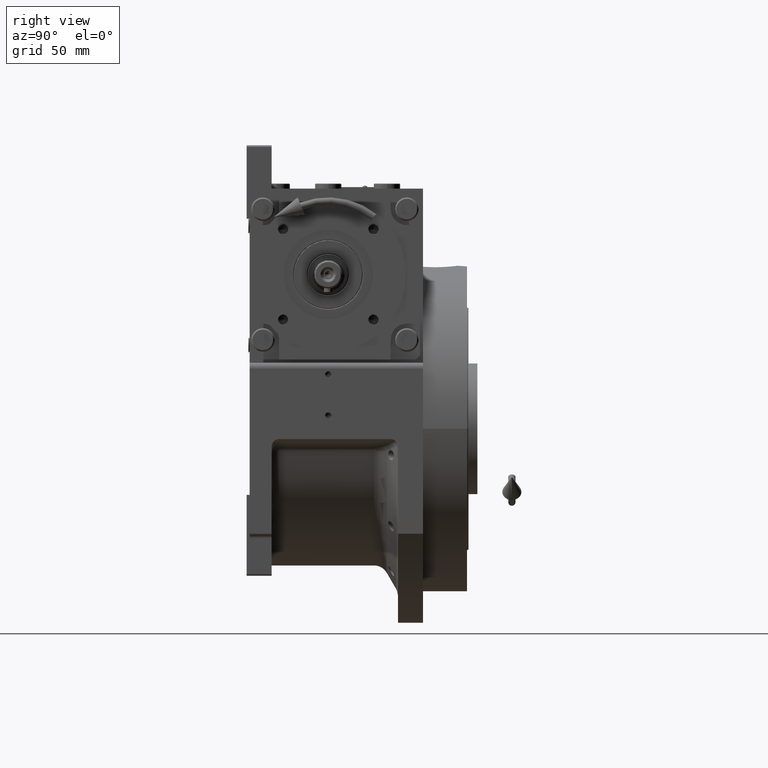
[diagram: clean part render]
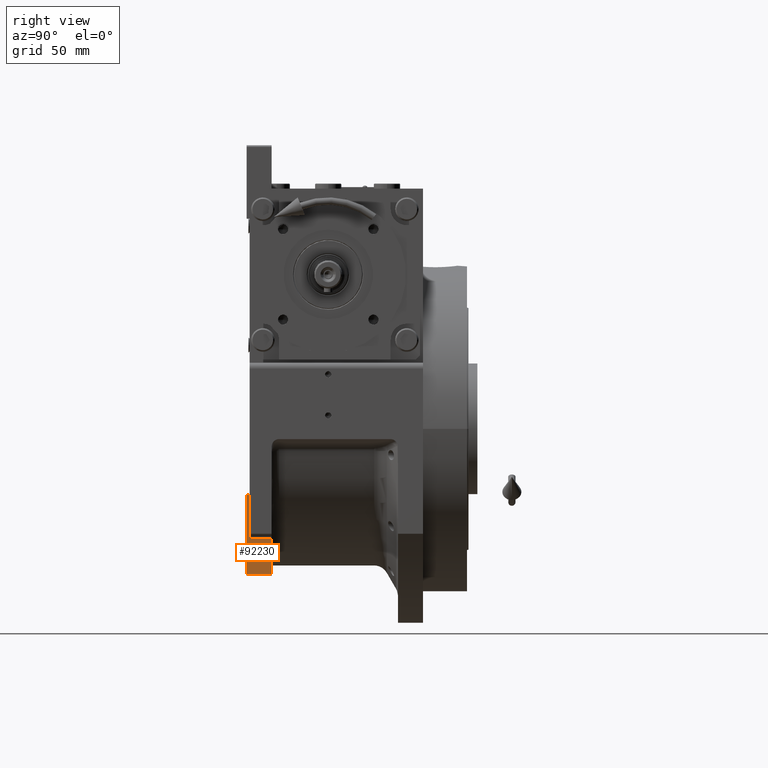
[diagram: same view with one face highlighted and labeled with its STEP entity id]
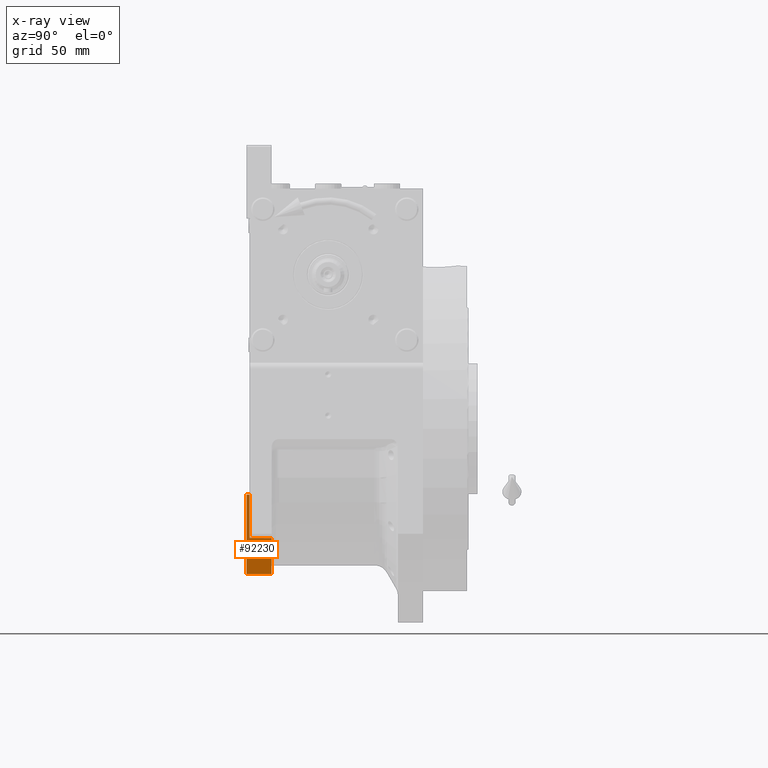
[diagram: x-ray of the same camera — body ghosted, the highlighted face saturated]
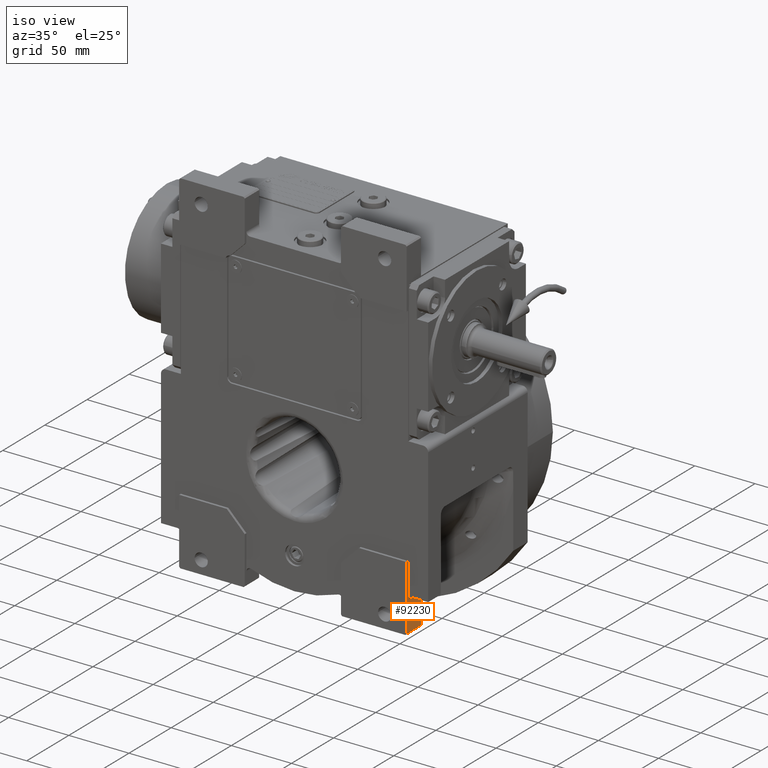
[diagram: same view with one face highlighted and labeled with its STEP entity id]
A machine part, right view. The second image highlights one B-rep face of the part: STEP entity #92230.
The next image is the same camera in x-ray: the body ghosted, the highlighted face saturated — about 0% of this face is hidden behind the body in this view.
A second angle (iso view) of the same face is appended — the face is thin or edge-on in the first view.
In plain terms, the highlighted planar face has unit normal (1, 0, 0).
Its self-contained STEP definition (entity closure, byte-faithful):
#3706 = FACE_OUTER_BOUND ( 'NONE', #53377, .T. ) ;
#5830 = CARTESIAN_POINT ( 'NONE',  ( 94.50000000000000000, -55.50000000000000000, -99.00000000000000000 ) ) ;
#7046 = CARTESIAN_POINT ( 'NONE',  ( 94.50000000000000000, -38.50000000000000000, -74.43528539874399996 ) ) ;
#9482 = ORIENTED_EDGE ( 'NONE', *, *, #99238, .T. ) ;
#9509 = VERTEX_POINT ( 'NONE', #7046 ) ;
#10116 = ORIENTED_EDGE ( 'NONE', *, *, #89134, .F. ) ;
#10331 = ORIENTED_EDGE ( 'NONE', *, *, #17990, .F. ) ;
#10395 = CARTESIAN_POINT ( 'NONE',  ( 94.50000000000000000, -53.50000000000000000, -74.43528539874399996 ) ) ;
#13529 = CARTESIAN_POINT ( 'NONE',  ( 94.50000000000000000, -53.50000000000000000, -74.43528539874399996 ) ) ;
#15947 = DIRECTION ( 'NONE',  ( 0.000000000000000000, 1.000000000000000000, 0.000000000000000000 ) ) ;
#17990 = EDGE_CURVE ( 'NONE', #40565, #9509, #20738, .T. ) ;
#20738 = LINE ( 'NONE', #13529, #88708 ) ;
#24163 = CARTESIAN_POINT ( 'NONE',  ( 94.50000000000000000, -55.50000000000000000, -45.00000000000000000 ) ) ;
#24165 = CARTESIAN_POINT ( 'NONE',  ( 94.50000000000000000, -55.50000000000000000, -99.00000000000000000 ) ) ;
#24854 = VECTOR ( 'NONE', #87416, 1000.000000000000000 ) ;
#30190 = VERTEX_POINT ( 'NONE', #43901 ) ;
#32440 = VERTEX_POINT ( 'NONE', #24163 ) ;
#40565 = VERTEX_POINT ( 'NONE', #10395 ) ;
#42392 = VECTOR ( 'NONE', #77359, 1000.000000000000000 ) ;
#43807 = PLANE ( 'NONE',  #87318 ) ;
#43901 = CARTESIAN_POINT ( 'NONE',  ( 94.50000000000000000, -53.50000000000000000, -45.00000000000000000 ) ) ;
#46458 = EDGE_CURVE ( 'NONE', #40565, #30190, #46650, .T. ) ;
#46650 = LINE ( 'NONE', #87847, #90977 ) ;
#48801 = VERTEX_POINT ( 'NONE', #87607 ) ;
#50292 = CARTESIAN_POINT ( 'NONE',  ( 94.50000000000000000, -38.50000000000000000, -99.00000000000000000 ) ) ;
#51053 = DIRECTION ( 'NONE',  ( 0.000000000000000000, 0.000000000000000000, 1.000000000000000000 ) ) ;
#51301 = VECTOR ( 'NONE', #101194, 1000.000000000000000 ) ;
#53377 = EDGE_LOOP ( 'NONE', ( #55782, #10331, #57610, #99083, #10116, #9482 ) ) ;
#55782 = ORIENTED_EDGE ( 'NONE', *, *, #99593, .T. ) ;
#57006 = LINE ( 'NONE', #73978, #24854 ) ;
#57610 = ORIENTED_EDGE ( 'NONE', *, *, #46458, .T. ) ;
#59288 = VERTEX_POINT ( 'NONE', #50292 ) ;
#59782 = CARTESIAN_POINT ( 'NONE',  ( 94.50000000000000000, -38.50000000000000000, -100.0000000000000000 ) ) ;
#66067 = DIRECTION ( 'NONE',  ( 0.000000000000000000, 1.000000000000000000, -9.473903143468000375E-16 ) ) ;
#73978 = CARTESIAN_POINT ( 'NONE',  ( 94.50000000000000000, -38.50000000000000000, -99.00000000000000000 ) ) ;
#76368 = LINE ( 'NONE', #5830, #42392 ) ;
#77359 = DIRECTION ( 'NONE',  ( 0.000000000000000000, 0.000000000000000000, 1.000000000000000000 ) ) ;
#77511 = CARTESIAN_POINT ( 'NONE',  ( 94.50000000000000000, -53.50000000000000000, -45.00000000000000000 ) ) ;
#79621 = DIRECTION ( 'NONE',  ( 0.000000000000000000, 0.000000000000000000, 1.000000000000000000 ) ) ;
#85492 = LINE ( 'NONE', #24165, #89232 ) ;
#87318 = AXIS2_PLACEMENT_3D ( 'NONE', #59782, #90186, #51053 ) ;
#87416 = DIRECTION ( 'NONE',  ( 0.000000000000000000, 0.000000000000000000, 1.000000000000000000 ) ) ;
#87607 = CARTESIAN_POINT ( 'NONE',  ( 94.50000000000000000, -55.50000000000000000, -99.00000000000000000 ) ) ;
#87847 = CARTESIAN_POINT ( 'NONE',  ( 94.50000000000000000, -53.50000000000000000, -74.43528539874399996 ) ) ;
#88708 = VECTOR ( 'NONE', #66067, 1000.000000000000000 ) ;
#89134 = EDGE_CURVE ( 'NONE', #48801, #32440, #76368, .T. ) ;
#89232 = VECTOR ( 'NONE', #15947, 1000.000000000000000 ) ;
#90186 = DIRECTION ( 'NONE',  ( 1.000000000000000000, 0.000000000000000000, -0.000000000000000000 ) ) ;
#90977 = VECTOR ( 'NONE', #79621, 1000.000000000000000 ) ;
#92230 = ADVANCED_FACE ( 'NONE', ( #3706 ), #43807, .T. ) ;
#93171 = EDGE_CURVE ( 'NONE', #30190, #32440, #94489, .T. ) ;
#94489 = LINE ( 'NONE', #77511, #51301 ) ;
#99083 = ORIENTED_EDGE ( 'NONE', *, *, #93171, .T. ) ;
#99238 = EDGE_CURVE ( 'NONE', #48801, #59288, #85492, .T. ) ;
#99593 = EDGE_CURVE ( 'NONE', #59288, #9509, #57006, .T. ) ;
#101194 = DIRECTION ( 'NONE',  ( 0.000000000000000000, -1.000000000000000000, 0.000000000000000000 ) ) ;